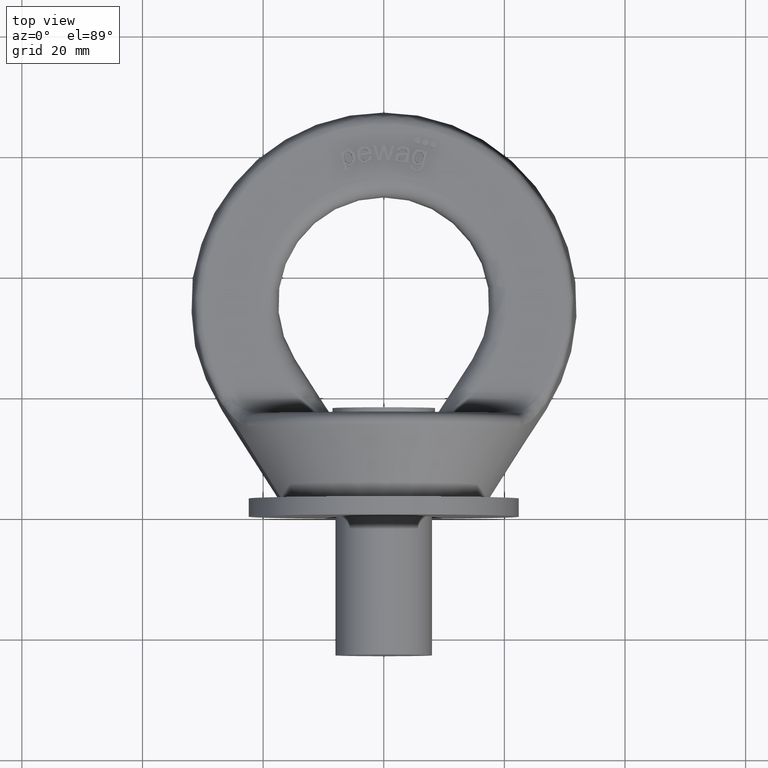
[diagram: clean part render]
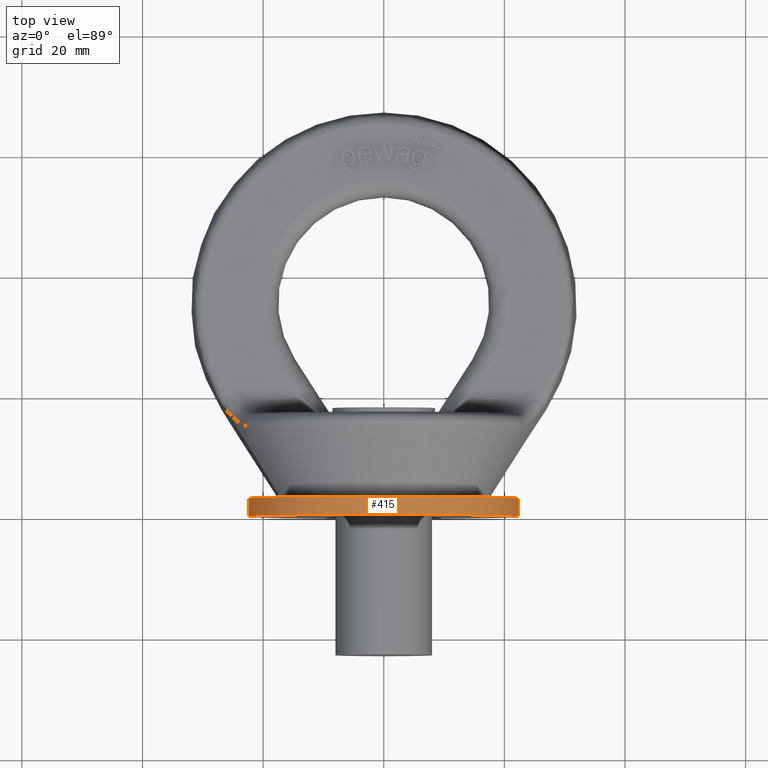
[diagram: same view with one face highlighted and labeled with its STEP entity id]
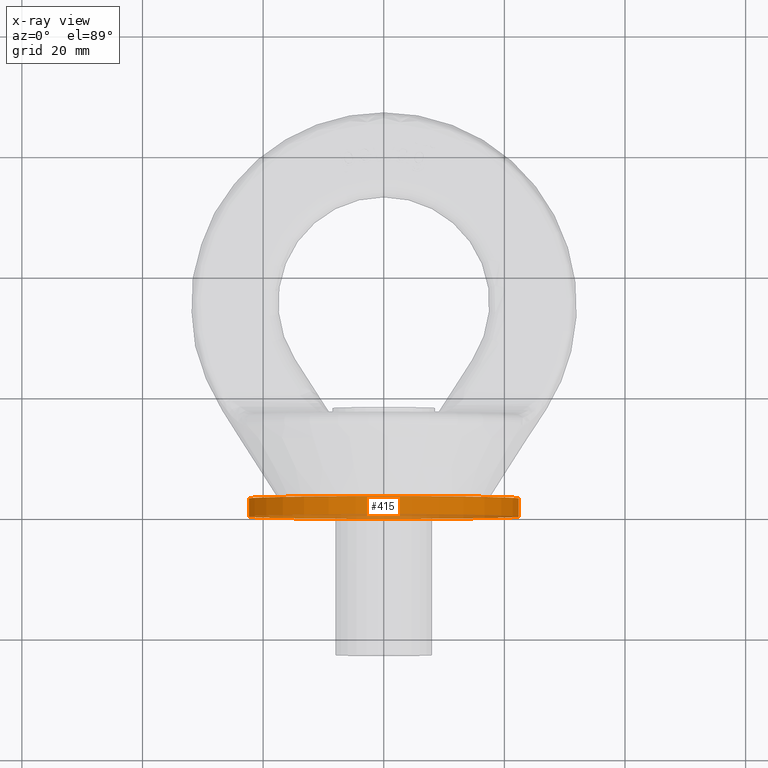
[diagram: x-ray of the same camera — body ghosted, the highlighted face saturated]
A machine part, top view. The second image highlights one B-rep face of the part: STEP entity #415.
The next image is the same camera in x-ray: the body ghosted, the highlighted face saturated — about 14% of this face is hidden behind the body in this view.
In plain terms, the highlighted cylindrical surface (bore or boss wall) has radius 22.5 mm, axis along (0, -1, 0).
Its self-contained STEP definition (entity closure, byte-faithful):
#226=CYLINDRICAL_SURFACE('',#3379,22.5);
#415=ADVANCED_FACE('',(#754,#755),#226,.T.);
#703=CIRCLE('',#3377,22.5);
#704=CIRCLE('',#3378,22.5);
#754=FACE_BOUND('',#823,.T.);
#755=FACE_BOUND('',#824,.T.);
#823=EDGE_LOOP('',(#1577));
#824=EDGE_LOOP('',(#1578));
#1577=ORIENTED_EDGE('',*,*,#2755,.F.);
#1578=ORIENTED_EDGE('',*,*,#2756,.T.);
#2453=VERTEX_POINT('',#4535);
#2454=VERTEX_POINT('',#4537);
#2755=EDGE_CURVE('',#2453,#2453,#703,.T.);
#2756=EDGE_CURVE('',#2454,#2454,#704,.T.);
#3377=AXIS2_PLACEMENT_3D('',#4534,#3632,#3633);
#3378=AXIS2_PLACEMENT_3D('',#4536,#3634,#3635);
#3379=AXIS2_PLACEMENT_3D('',#4538,#3636,#3637);
#3632=DIRECTION('',(0.,-1.,0.));
#3633=DIRECTION('',(0.,0.,-1.));
#3634=DIRECTION('',(0.,-1.,0.));
#3635=DIRECTION('',(0.,0.,-1.));
#3636=DIRECTION('',(0.,-1.,0.));
#3637=DIRECTION('',(0.,0.,-1.));
#4534=CARTESIAN_POINT('',(0.,0.,0.));
#4535=CARTESIAN_POINT('',(0.,0.,-22.5));
#4536=CARTESIAN_POINT('',(0.,3.,0.));
#4537=CARTESIAN_POINT('',(0.,3.,-22.5));
#4538=CARTESIAN_POINT('',(0.,-19.512929080744,0.));